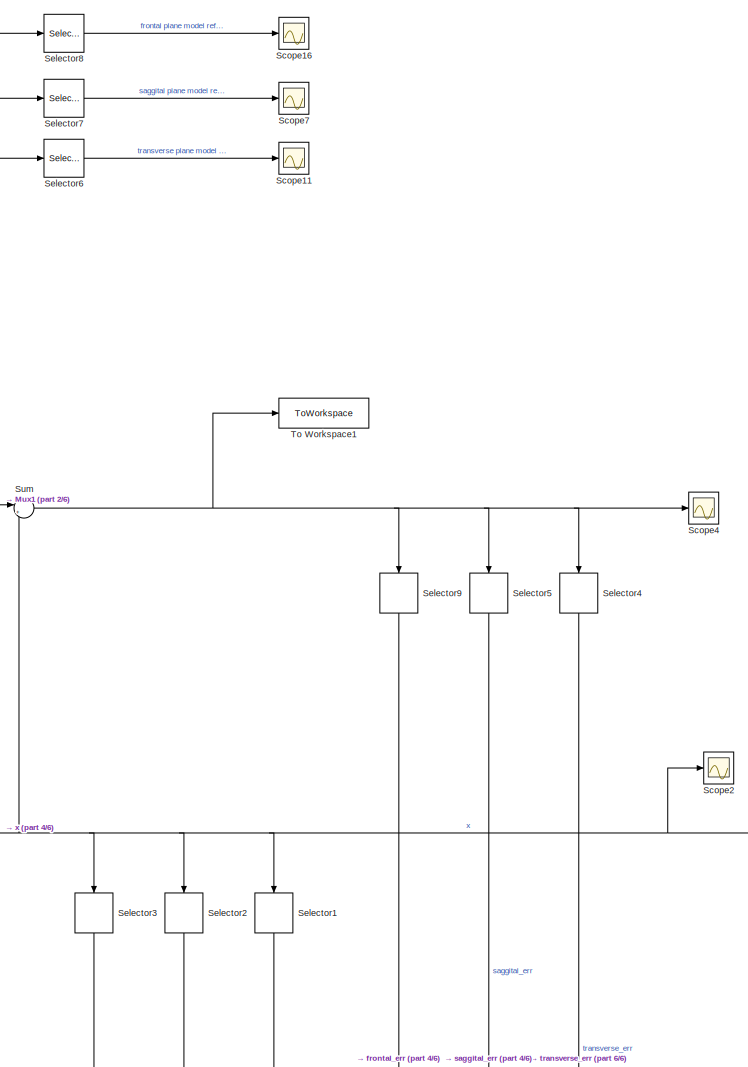
[diagram: root canvas - part 1/6, central region]
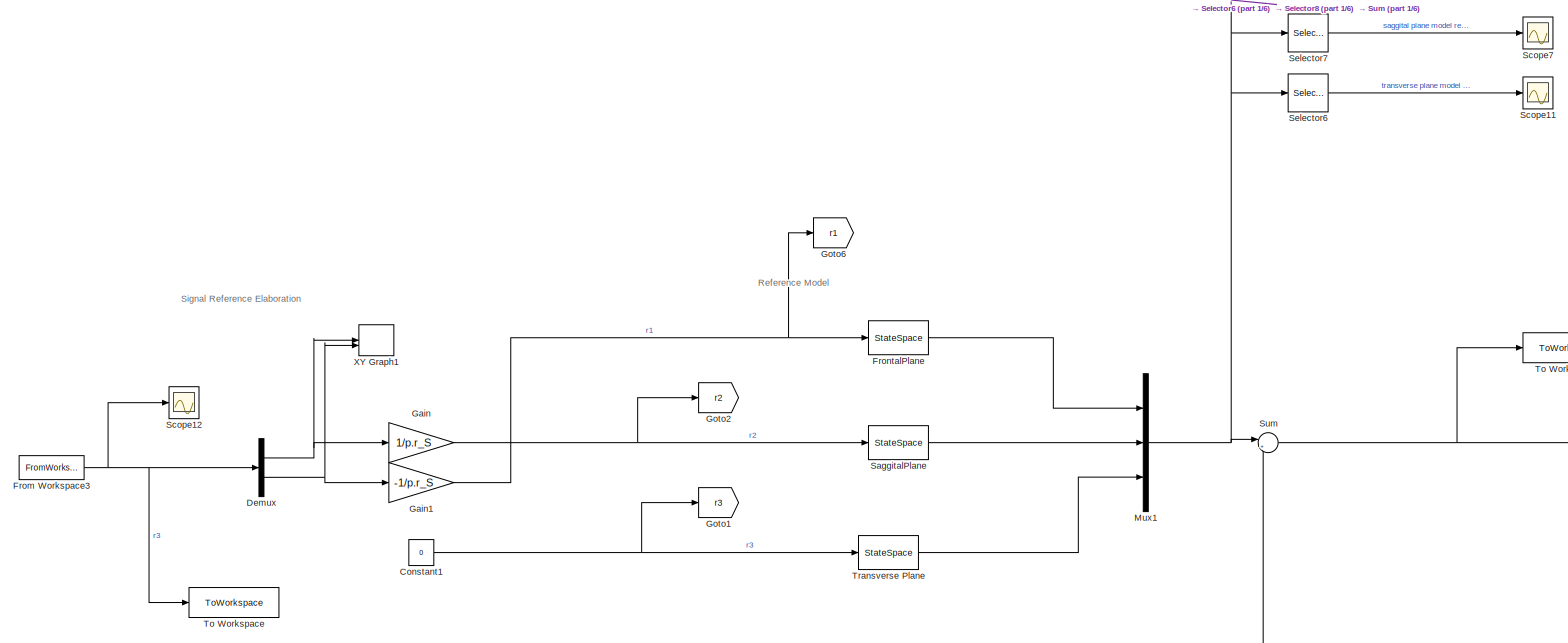
[diagram: root canvas - part 2/6, top left region]
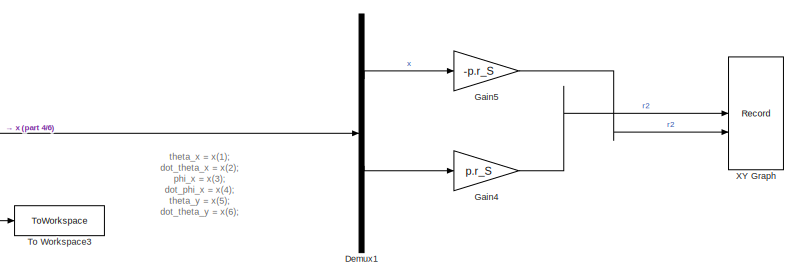
[diagram: root canvas - part 3/6, middle right region]
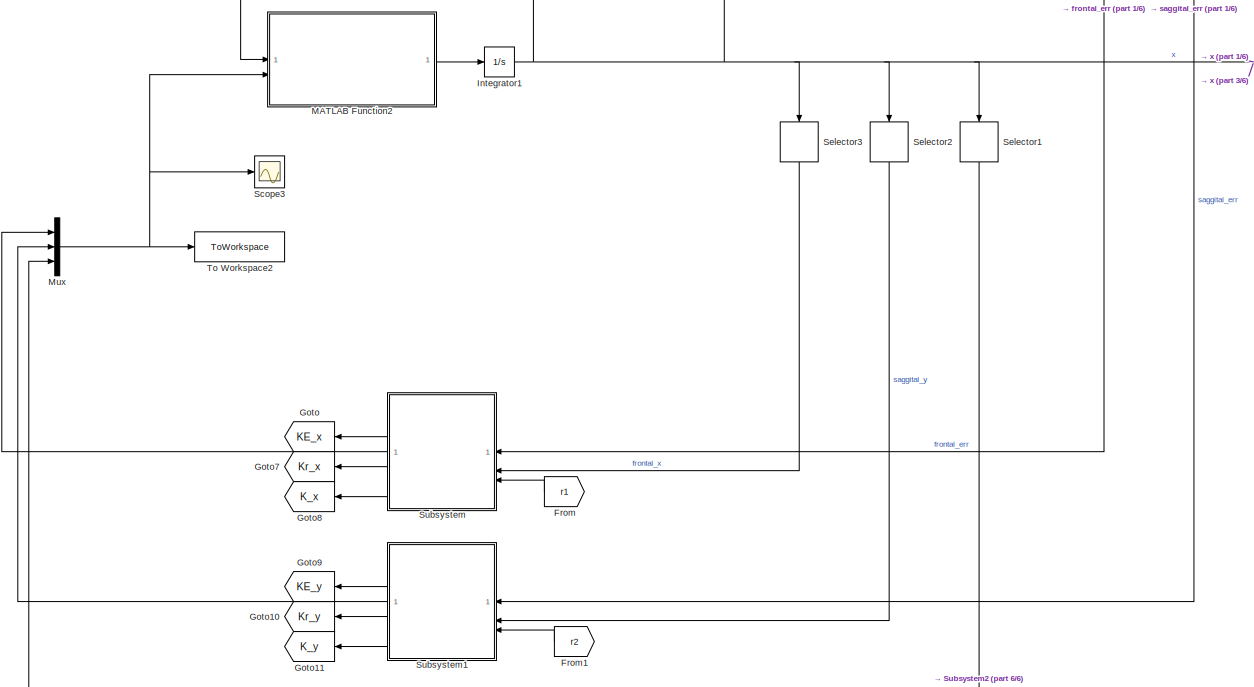
[diagram: root canvas - part 4/6, bottom center region]
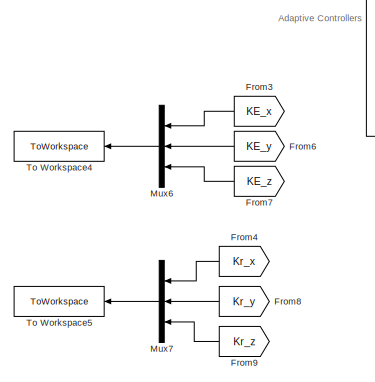
[diagram: root canvas - part 5/6, bottom left region]
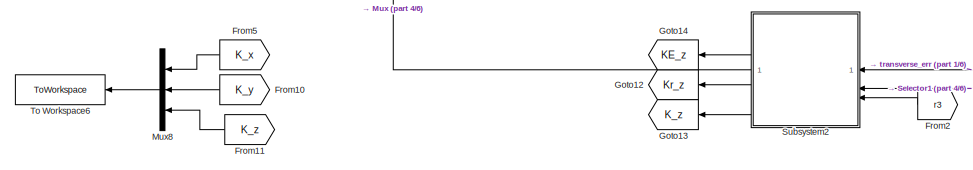
[diagram: root canvas - part 6/6, bottom left region]
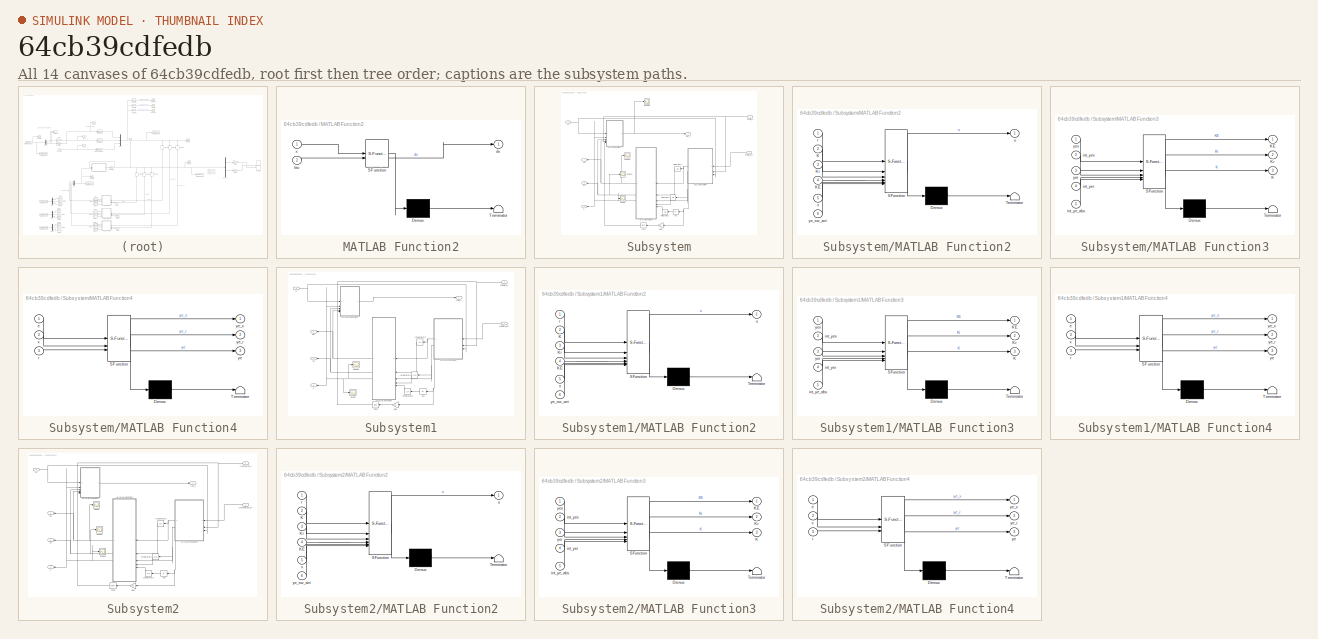
[diagram: thumbnail index - all 14 canvases of the model, root first then tree order]
MODEL slx_64cb39cdfedb
KIND model
CONFIG AbsTol = auto
CONFIG EnableMultiTasking = off
CONFIG FixedStep = 0.001
CONFIG MaxStep = auto
CONFIG MinStep = auto
CONFIG RelTol = 1e-3
CONFIG SampleTimeConstraint = Unconstrained
CONFIG SolverName = ode4
CONFIG StartTime = 0.0
CONFIG StopTime = 36
BLOCK [Constant] Constant1
  Value = 0
BLOCK [Demux] Demux
  Outputs = 2
BLOCK [Demux] Demux1
  Outputs = 10
BLOCK [From] From
  GotoTag = r1
  NameLocation = top
BLOCK [FromWorkspace] From Workspace3
  OutputAfterFinalValue = Holding final value
  SampleTime = 0.01
  VariableName = waypoints_ts
BLOCK [From] From1
  GotoTag = r2
  NameLocation = top
BLOCK [From] From10
  GotoTag = K_y
BLOCK [From] From11
  GotoTag = K_z
BLOCK [From] From2
  GotoTag = r3
  NameLocation = top
BLOCK [From] From3
  GotoTag = KE_x
BLOCK [From] From4
  GotoTag = Kr_x
BLOCK [From] From5
  GotoTag = K_x
BLOCK [From] From6
  GotoTag = KE_y
BLOCK [From] From7
  GotoTag = KE_z
BLOCK [From] From8
  GotoTag = Kr_y
BLOCK [From] From9
  GotoTag = Kr_z
BLOCK [StateSpace] FrontalPlane
  A = Am_x
  B = Bm_x
  C = Cm_x
  D = Dm_x
  InitialCondition = x0(1:4)
BLOCK [Gain] Gain
  Gain = 1/p.r_S
BLOCK [Gain] Gain1
  Gain = -1/p.r_S
BLOCK [Gain] Gain4
  Gain = p.r_S
  Multiplication = Matrix(K*u)
BLOCK [Gain] Gain5
  Gain = -p.r_S
  Multiplication = Matrix(K*u)
BLOCK [Goto] Goto
  GotoTag = KE_x
  NameLocation = top
BLOCK [Goto] Goto1
  GotoTag = r3
BLOCK [Goto] Goto10
  GotoTag = Kr_y
BLOCK [Goto] Goto11
  GotoTag = K_y
  NameLocation = top
BLOCK [Goto] Goto12
  GotoTag = Kr_z
BLOCK [Goto] Goto13
  GotoTag = K_z
  NameLocation = top
BLOCK [Goto] Goto14
  GotoTag = KE_z
  NameLocation = top
BLOCK [Goto] Goto2
  GotoTag = r2
BLOCK [Goto] Goto6
  GotoTag = r1
BLOCK [Goto] Goto7
  GotoTag = Kr_x
  NameLocation = top
BLOCK [Goto] Goto8
  GotoTag = K_x
  NameLocation = top
BLOCK [Goto] Goto9
  GotoTag = KE_y
  NameLocation = top
BLOCK [Integrator] Integrator1
  InitialCondition = x0
BLOCK [SubSystem] MATLAB Function2
  ErrorFcn = Stateflow.Translate.translate
  PermitHierarchicalResolution = ExplicitOnly
  SFBlockType = MATLAB Function
  TreatAsAtomicUnit = on
BLOCK [Demux] MATLAB Function2/ Demux 
  Outputs = 1
BLOCK [S-Function] MATLAB Function2/ SFunction 
  EnableBusSupport = off
  FunctionName = sf_sfun
  Parameters = p
  PortCounts = [2 2]
  SFcnIsStateOwnerBlock = off
  SFunctionDeploymentMode = off
  Tag = Stateflow S-Function 11
BLOCK [Terminator] MATLAB Function2/ Terminator 
BLOCK [Outport] MATLAB Function2/dx
BLOCK [Inport] MATLAB Function2/tau
  Port = 2
BLOCK [Inport] MATLAB Function2/x
BLOCK [Mux] Mux
  DisplayOption = bar
  Inputs = 3
BLOCK [Mux] Mux1
  DisplayOption = bar
  Inputs = 3
BLOCK [Mux] Mux6
  DisplayOption = bar
  Inputs = 3
  NameLocation = top
BLOCK [Mux] Mux7
  DisplayOption = bar
  Inputs = 3
  NameLocation = top
BLOCK [Mux] Mux8
  DisplayOption = bar
  Inputs = 3
  NameLocation = top
BLOCK [StateSpace] SaggitalPlane
  A = Am_y
  B = Bm_y
  C = Cm_y
  D = Dm_y
  InitialCondition = x0(5:8)
BLOCK [Scope] Scope11
  ActiveDisplayYMaximum = 1
  ActiveDisplayYMinimum = -1
  ContainerLayout = {"WindowBounds":[112,-12,1309,844],"gridDimensions":{"w":1,"h":1},"tileCount":1,"tileCoverage":1,"columnWeights":1,"rowWeights":1,"tileOccupancy":{}}
  DataLoggingVariableName = ScopeData19
  Floating = off
  GraphicalSettings = {"Style":{"BackgroundColor":[0,0,0],"AxesColor":[0,0,0],"LabelsColor":[0,0,0],"PreserveColors":false,"Visible":[true,true],"LineStyle":["-","-"],"LineWidth":[1.5,1.5],"BarWidth":[0.9,0.9],"LineColor":["auto","auto"],"LineFaceAlpha":[1,1],"LineEdgeAlpha":[1,1],"Marker":["none","none"],"FontSize":8.5,"LineTrueColor":[[0.06666666666666667,0.44313725490196076,0.7450980392156863],[0.8666666666666667,0....<+1964ch>
  MultipleDisplayCache = [{"MaxYLimMag":1,"MaxYLimReal":1,"MinYLimMag":0,"MinYLimReal":-1,"PlotAsMagnitudePhase":false,"ShowGrid":true,"ShowLegend":false,"Title":"%<SignalLabel>","YLabel":""}]
  NameLocation = right
  NumInputPorts = 1
  ScopeFrameLocation = container
  WasSavedAsWebScope = on
  WindowPosition = [112.000000,32.000000,1309.000000,844.000000,]
BLOCK [Scope] Scope12
  ActiveDisplayYMaximum = 4.9604985349891688
  ActiveDisplayYMinimum = -0.55116650388768529
  DataLoggingDecimation = 1
  DataLoggingSaveFormat = Array
  DataLoggingVariableName = ScopeData20
  Floating = off
  GraphicalSettings = {"Style":{"BackgroundColor":[0.12941176470588237,0.12941176470588237,0.12941176470588237],"AxesColor":[0.07058823529411765,0.07058823529411765,0.07058823529411765],"LabelsColor":[0.8509803921568627,0.8509803921568627,0.8509803921568627],"PreserveColors":false,"Visible":[true,true],"LineStyle":["-","-"],"LineWidth":[1.5,1.5],"BarWidth":[0.9,0.9],"LineColor":["auto","auto"],"LineFaceAlpha":[1,1],"Li...<+2099ch>
  MultipleDisplayCache = [{"MaxYLimMag":4.9604985349891688,"MaxYLimReal":4.9604985349891688,"MinYLimMag":0,"MinYLimReal":-0.55116650388768529,"PlotAsMagnitudePhase":false,"ShowGrid":true,"ShowLegend":false,"Title":"%<SignalLabel>","YLabel":""}]
  NumInputPorts = 1
  ScopeFrameLocation = window
  WasSavedAsWebScope = on
  WindowPosition = [2.000000,50.000000,766.000000,785.000000,]
BLOCK [Scope] Scope16
  ActiveDisplayYMaximum = 5.3735398831765027
  ActiveDisplayYMinimum = -1.561360729010373
  DataLoggingVariableName = ScopeData25
  Floating = off
  GraphicalSettings = {"Style":{"BackgroundColor":[0.12941176470588237,0.12941176470588237,0.12941176470588237],"AxesColor":[0.07058823529411765,0.07058823529411765,0.07058823529411765],"LabelsColor":[0.8509803921568627,0.8509803921568627,0.8509803921568627],"PreserveColors":false,"Visible":[true,false,false,false],"LineStyle":["-","-","-","-"],"LineWidth":[1.5,1.5,1.5,1.5],"BarWidth":[0.9,0.9,0.9,0.9],"LineColor":["au...<+2525ch>
  MultipleDisplayCache = [{"MaxYLimMag":5.3735398831765027,"MaxYLimReal":5.3735398831765027,"MinYLimMag":0,"MinYLimReal":-1.561360729010373,"PlotAsMagnitudePhase":false,"ShowGrid":true,"ShowLegend":true,"Title":"%<SignalLabel>","YLabel":""}]
  NameLocation = right
  NumInputPorts = 1
  ScopeFrameLocation = window
  ShowLegend = on
  WasSavedAsWebScope = on
  WindowPosition = [1.000000,49.000000,1536.000000,793.000000,]
BLOCK [Scope] Scope2
  ActiveDisplayYMaximum = 12.484215788226109
  ActiveDisplayYMinimum = -2.4855756069167088
  ContainerLayout = {"WindowBounds":[71,0,1309,822]}
  DataLoggingVariableName = ScopeData1
  Floating = off
  GraphicalSettings = {"Style":{"BackgroundColor":[0.12941176470588237,0.12941176470588237,0.12941176470588237],"AxesColor":[0.07058823529411765,0.07058823529411765,0.07058823529411765],"LabelsColor":[0.8509803921568627,0.8509803921568627,0.8509803921568627],"PreserveColors":false,"Visible":[true,false,false,false,false,false,false,false,true,false],"LineStyle":["-","-","-","-","-","-","-","-","-","-"],"LineWidth":[1.5...<+2926ch>
  MultipleDisplayCache = [{"MaxYLimMag":12.484215788226109,"MaxYLimReal":12.484215788226109,"MinYLimMag":0,"MinYLimReal":-2.4855756069167088,"PlotAsMagnitudePhase":false,"ShowGrid":true,"ShowLegend":true,"Title":"%<SignalLabel>","YLabel":""}]
  NumInputPorts = 1
  ScopeFrameLocation = container
  ShowLegend = on
  WasSavedAsWebScope = on
  WindowPosition = [79.000000,50.000000,1294.000000,785.000000,]
BLOCK [Scope] Scope3
  ActiveDisplayYMaximum = 581.33162472829531
  ActiveDisplayYMinimum = -105.04370048469272
  ContainerLayout = {"WindowBounds":[71,0,1309,822]}
  DataLoggingVariableName = ScopeData9
  Floating = off
  GraphicalSettings = {"Style":{"BackgroundColor":[0.12941176470588237,0.12941176470588237,0.12941176470588237],"AxesColor":[0.07058823529411765,0.07058823529411765,0.07058823529411765],"LabelsColor":[0.8509803921568627,0.8509803921568627,0.8509803921568627],"PreserveColors":false,"Visible":[true,true,true],"LineStyle":["-","-","-"],"LineWidth":[1.5,1.5,1.5],"BarWidth":[0.9,0.9,0.9],"LineColor":["auto","auto","auto"],"...<+2252ch>
  MultipleDisplayCache = [{"MaxYLimMag":581.33162472829531,"MaxYLimReal":581.33162472829531,"MinYLimMag":0,"MinYLimReal":-105.04370048469272,"PlotAsMagnitudePhase":false,"ShowGrid":true,"ShowLegend":true,"Title":"%<SignalLabel>","YLabel":""}]
  NumInputPorts = 1
  ScopeFrameLocation = container
  ShowLegend = on
  Visible = on
  WasSavedAsWebScope = on
  WindowPosition = [71.000000,42.000000,1309.000000,822.000000,]
BLOCK [Scope] Scope4
  ActiveDisplayYMaximum = 7.9410058565728949
  ActiveDisplayYMinimum = -19.49948502397293
  ContainerLayout = {"WindowBounds":[71,0,1309,822]}
  DataLoggingVariableName = ScopeData2
  Floating = off
  GraphicalSettings = {"Style":{"BackgroundColor":[0.12941176470588237,0.12941176470588237,0.12941176470588237],"AxesColor":[0.07058823529411765,0.07058823529411765,0.07058823529411765],"LabelsColor":[0.8509803921568627,0.8509803921568627,0.8509803921568627],"PreserveColors":false,"Visible":[false,false,false,false,false,false,false,false,false,false],"LineStyle":["-","-","-","-","-","-","-","-","-","-"],"LineWidth":[1...<+2962ch>
  MultipleDisplayCache = [{"MaxYLimMag":19.49948502397293,"MaxYLimReal":7.9410058565728949,"MinYLimMag":0,"MinYLimReal":-19.49948502397293,"PlotAsMagnitudePhase":false,"ShowGrid":true,"ShowLegend":true,"Title":"%<SignalLabel>","YLabel":""}]
  NumInputPorts = 1
  ScopeFrameLocation = container
  ShowLegend = on
  WasSavedAsWebScope = on
  WindowPosition = [79.000000,50.000000,1294.000000,785.000000,]
BLOCK [Scope] Scope7
  ActiveDisplayYMaximum = 39.484259056634677
  ActiveDisplayYMinimum = -5.03194060462366
  DataLoggingVariableName = ScopeData13
  Floating = off
  GraphicalSettings = {"Style":{"BackgroundColor":[0.12941176470588237,0.12941176470588237,0.12941176470588237],"AxesColor":[0.07058823529411765,0.07058823529411765,0.07058823529411765],"LabelsColor":[0.8509803921568627,0.8509803921568627,0.8509803921568627],"PreserveColors":false,"Visible":[true,true,true,true],"LineStyle":["-","-","-","-"],"LineWidth":[1.5,1.5,1.5,1.5],"BarWidth":[0.9,0.9,0.9,0.9],"LineColor":["auto"...<+2536ch>
  MultipleDisplayCache = [{"MaxYLimMag":39.484259056634677,"MaxYLimReal":39.484259056634677,"MinYLimMag":0,"MinYLimReal":-5.03194060462366,"PlotAsMagnitudePhase":false,"ShowGrid":true,"ShowLegend":true,"Title":"%<SignalLabel>","YLabel":""}]
  NameLocation = right
  NumInputPorts = 1
  ScopeFrameLocation = window
  ShowLegend = on
  WasSavedAsWebScope = on
  WindowPosition = [8.000000,44.000000,1520.000000,777.000000,]
BLOCK [Selector] Selector1
  IndexOptions = Index vector (dialog)
  Indices = [9 10]
  InputPortWidth = 10
  NameLocation = left
  OutputSizes = 1
BLOCK [Selector] Selector2
  IndexOptions = Index vector (dialog)
  Indices = [5 6 7 8]
  InputPortWidth = 10
  NameLocation = left
  OutputSizes = 1
BLOCK [Selector] Selector3
  IndexOptions = Index vector (dialog)
  Indices = [1 2 3 4]
  InputPortWidth = 10
  NameLocation = left
  OutputSizes = 1
BLOCK [Selector] Selector4
  IndexOptions = Index vector (dialog)
  Indices = [9 10]
  InputPortWidth = 10
  NameLocation = left
  OutputSizes = 1
BLOCK [Selector] Selector5
  IndexOptions = Index vector (dialog)
  Indices = [5 6 7 8]
  InputPortWidth = 10
  NameLocation = left
  OutputSizes = 1
BLOCK [Selector] Selector6
  IndexOptions = Index vector (dialog)
  Indices = [9 10]
  InputPortWidth = 10
  OutputSizes = 1
BLOCK [Selector] Selector7
  IndexOptions = Index vector (dialog)
  Indices = [5 6 7 8]
  InputPortWidth = 10
  OutputSizes = 1
BLOCK [Selector] Selector8
  IndexOptions = Index vector (dialog)
  Indices = [1 2 3 4]
  InputPortWidth = 10
  OutputSizes = 1
BLOCK [Selector] Selector9
  IndexOptions = Index vector (dialog)
  Indices = [1 2 3 4]
  InputPortWidth = 10
  NameLocation = left
  OutputSizes = 1
BLOCK [SubSystem] Subsystem
  NameLocation = top
BLOCK [Abs] Subsystem/Abs
  NameLocation = top
  SaturateOnIntegerOverflow = off
BLOCK [Gain] Subsystem/Gain
  Gain = 20
  NameLocation = top
BLOCK [Integrator] Subsystem/Integrator2
  NameLocation = top
BLOCK [Integrator] Subsystem/Integrator3
  NameLocation = top
BLOCK [Integrator] Subsystem/Integrator4
  NameLocation = top
BLOCK [Outport] Subsystem/K
  NameLocation = top
  Port = 4
BLOCK [Outport] Subsystem/KE
  NameLocation = top
  Port = 2
BLOCK [Outport] Subsystem/Kr
  NameLocation = top
  Port = 3
BLOCK [SubSystem] Subsystem/MATLAB Function2
  ErrorFcn = Stateflow.Translate.translate
  PermitHierarchicalResolution = ExplicitOnly
  SFBlockType = MATLAB Function
  TreatAsAtomicUnit = on
BLOCK [Demux] Subsystem/MATLAB Function2/ Demux 
  Outputs = 1
BLOCK [S-Function] Subsystem/MATLAB Function2/ SFunction 
  EnableBusSupport = off
  FunctionName = sf_sfun
  PortCounts = [6 2]
  SFcnIsStateOwnerBlock = off
  SFunctionDeploymentMode = off
  Tag = Stateflow S-Function 3
BLOCK [Terminator] Subsystem/MATLAB Function2/ Terminator 
BLOCK [Inport] Subsystem/MATLAB Function2/K
  Port = 2
BLOCK [Inport] Subsystem/MATLAB Function2/KE
  Port = 4
BLOCK [Inport] Subsystem/MATLAB Function2/Kr
  Port = 3
BLOCK [Inport] Subsystem/MATLAB Function2/r
BLOCK [Outport] Subsystem/MATLAB Function2/u
BLOCK [Inport] Subsystem/MATLAB Function2/x
  Port = 5
BLOCK [Inport] Subsystem/MATLAB Function2/ye_sw_act
  Port = 6
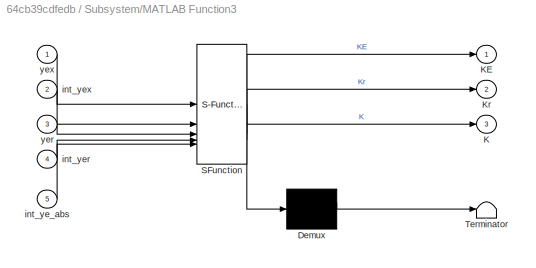
BLOCK [SubSystem] Subsystem/MATLAB Function3
  ErrorFcn = Stateflow.Translate.translate
  NameLocation = top
  PermitHierarchicalResolution = ExplicitOnly
  SFBlockType = MATLAB Function
  TreatAsAtomicUnit = on
BLOCK [Demux] Subsystem/MATLAB Function3/ Demux 
  Outputs = 1
BLOCK [S-Function] Subsystem/MATLAB Function3/ SFunction 
  EnableBusSupport = off
  FunctionName = sf_sfun
  Parameters = alpha,beta,gamma
  PortCounts = [5 4]
  SFcnIsStateOwnerBlock = off
  SFunctionDeploymentMode = off
  Tag = Stateflow S-Function 4
BLOCK [Terminator] Subsystem/MATLAB Function3/ Terminator 
BLOCK [Outport] Subsystem/MATLAB Function3/K
  Port = 3
BLOCK [Outport] Subsystem/MATLAB Function3/KE
BLOCK [Outport] Subsystem/MATLAB Function3/Kr
  Port = 2
BLOCK [Inport] Subsystem/MATLAB Function3/int_ye_abs
  Port = 5
BLOCK [Inport] Subsystem/MATLAB Function3/int_yer
  Port = 4
BLOCK [Inport] Subsystem/MATLAB Function3/int_yex
  Port = 2
BLOCK [Inport] Subsystem/MATLAB Function3/yer
  Port = 3
BLOCK [Inport] Subsystem/MATLAB Function3/yex
BLOCK [SubSystem] Subsystem/MATLAB Function4
  ErrorFcn = Stateflow.Translate.translate
  NameLocation = top
  PermitHierarchicalResolution = ExplicitOnly
  SFBlockType = MATLAB Function
  TreatAsAtomicUnit = on
BLOCK [Demux] Subsystem/MATLAB Function4/ Demux 
  Outputs = 1
BLOCK [S-Function] Subsystem/MATLAB Function4/ SFunction 
  EnableBusSupport = off
  FunctionName = sf_sfun
  Parameters = B_roll,Px
  PortCounts = [3 4]
  SFcnIsStateOwnerBlock = off
  SFunctionDeploymentMode = off
  Tag = Stateflow S-Function 2
BLOCK [Terminator] Subsystem/MATLAB Function4/ Terminator 
BLOCK [Inport] Subsystem/MATLAB Function4/e
BLOCK [Inport] Subsystem/MATLAB Function4/r
  Port = 3
BLOCK [Inport] Subsystem/MATLAB Function4/x
  Port = 2
BLOCK [Outport] Subsystem/MATLAB Function4/ye
  Port = 3
BLOCK [Outport] Subsystem/MATLAB Function4/ye_r
  Port = 2
BLOCK [Outport] Subsystem/MATLAB Function4/ye_x
BLOCK [Scope] Subsystem/Scope
  ActiveDisplayYMaximum = 11.360372956626584
  ActiveDisplayYMinimum = -14.804673903534876
  DataLoggingVariableName = ScopeData6
  Floating = off
  GraphicalSettings = {"AxesScalingProperties":{"AlignXAxis":"Center","AlignYAxis":"Center","AutoScaleXAxisLimits":false,"AxesScaling":"Manual","AxesScalingNumUpdates":10,"ExpandOnly":true,"ScaleAxesLimitsAtStop":false,"XAxisDataRange":100,"YAxisDataRange":80},"DisplayProperties":{"ColorOrder":["auto","auto","auto","auto","auto","auto","auto","auto","auto","auto","auto","auto","auto","auto","auto","auto","auto","auto",...<+2467ch>
  MultipleDisplayCache = [{"MaxYLimMag":14.804673903534876,"MaxYLimReal":11.360372956626584,"MinYLimMag":0,"MinYLimReal":-14.804673903534876,"PlotAsMagnitudePhase":false,"ShowGrid":true,"ShowLegend":true,"Title":"%<SignalLabel>","YLabel":""}]
  NumInputPorts = 1
  ScopeFrameLocation = window
  ShowLegend = on
  WasSavedAsWebScope = on
  WindowPosition = [1.000000,49.000000,1536.000000,793.000000,]
BLOCK [Scope] Subsystem/Scope1
  ActiveDisplayYMaximum = 5.1005284890822695
  ActiveDisplayYMinimum = -5.521667452338054
  DataLoggingVariableName = ScopeData7
  Floating = off
  GraphicalSettings = {"Style":{"BackgroundColor":[0.12941176470588237,0.12941176470588237,0.12941176470588237],"AxesColor":[0.07058823529411765,0.07058823529411765,0.07058823529411765],"LabelsColor":[0.8509803921568627,0.8509803921568627,0.8509803921568627],"PreserveColors":false,"Visible":[true],"LineStyle":["-"],"LineWidth":[1.5],"BarWidth":[0.9],"LineColor":["auto"],"LineFaceAlpha":[1],"LineEdgeAlpha":[1],"Marker":...<+2021ch>
  MultipleDisplayCache = [{"MaxYLimMag":5.521667452338054,"MaxYLimReal":5.1005284890822695,"MinYLimMag":0,"MinYLimReal":-5.521667452338054,"PlotAsMagnitudePhase":false,"ShowGrid":true,"ShowLegend":false,"Title":"%<SignalLabel>","YLabel":""}]
  NumInputPorts = 1
  ScopeFrameLocation = window
  WasSavedAsWebScope = on
  WindowPosition = [305.000000,183.000000,560.000000,420.000000,]
BLOCK [Scope] Subsystem/Scope2
  ActiveDisplayYMaximum = 1
  ActiveDisplayYMinimum = -1
  DataLoggingVariableName = ScopeData8
  Floating = off
  GraphicalSettings = {"Style":{"BackgroundColor":[0.12941176470588237,0.12941176470588237,0.12941176470588237],"AxesColor":[0.07058823529411765,0.07058823529411765,0.07058823529411765],"LabelsColor":[0.8509803921568627,0.8509803921568627,0.8509803921568627],"PreserveColors":false,"Visible":[true],"LineStyle":["-"],"LineWidth":[1.5],"BarWidth":[0.9],"LineColor":["auto"],"LineFaceAlpha":[1],"LineEdgeAlpha":[1],"Marker":...<+2040ch>
  MultipleDisplayCache = [{"MaxYLimMag":1,"MaxYLimReal":1,"MinYLimMag":0,"MinYLimReal":-1,"PlotAsMagnitudePhase":false,"ShowGrid":true,"ShowLegend":false,"Title":"%<SignalLabel>","YLabel":""}]
  NumInputPorts = 1
  ScopeFrameLocation = window
  WasSavedAsWebScope = on
  WindowPosition = [488.000000,222.000000,560.000000,420.000000,]
BLOCK [Scope] Subsystem/Scope3
  ActiveDisplayYMaximum = 5.2222356802516376
  ActiveDisplayYMinimum = -0.58024840891684848
  DataLoggingVariableName = ScopeData12
  Floating = off
  GraphicalSettings = {"Style":{"BackgroundColor":[0.12941176470588237,0.12941176470588237,0.12941176470588237],"AxesColor":[0.07058823529411765,0.07058823529411765,0.07058823529411765],"LabelsColor":[0.8509803921568627,0.8509803921568627,0.8509803921568627],"PreserveColors":false,"Visible":[true],"LineStyle":["-"],"LineWidth":[1.5],"BarWidth":[0.9],"LineColor":["auto"],"LineFaceAlpha":[1],"LineEdgeAlpha":[1],"Marker":...<+2021ch>
  MultipleDisplayCache = [{"MaxYLimMag":5.2222356802516376,"MaxYLimReal":5.2222356802516376,"MinYLimMag":0,"MinYLimReal":-0.58024840891684848,"PlotAsMagnitudePhase":false,"ShowGrid":true,"ShowLegend":false,"Title":"%<SignalLabel>","YLabel":""}]
  NumInputPorts = 1
  ScopeFrameLocation = window
  WasSavedAsWebScope = on
  WindowPosition = [385.000000,40.000000,766.000000,785.000000,]
BLOCK [Trigonometry] Subsystem/Tanh
  NameLocation = top
  Operator = tanh
BLOCK [Inport] Subsystem/frontal_err
  NameLocation = top
BLOCK [Inport] Subsystem/frontal_x
  NameLocation = top
  Port = 2
BLOCK [Inport] Subsystem/r1
  Port = 3
BLOCK [Outport] Subsystem/tau_x
BLOCK [SubSystem] Subsystem1
  NameLocation = top
BLOCK [Abs] Subsystem1/Abs
  NameLocation = top
  SaturateOnIntegerOverflow = off
BLOCK [Gain] Subsystem1/Gain
  Gain = 20
  NameLocation = top
BLOCK [Integrator] Subsystem1/Integrator2
  NameLocation = top
BLOCK [Integrator] Subsystem1/Integrator3
  NameLocation = top
BLOCK [Integrator] Subsystem1/Integrator4
  NameLocation = top
BLOCK [Outport] Subsystem1/K
  NameLocation = top
  Port = 4
BLOCK [Outport] Subsystem1/KE
  NameLocation = top
  Port = 2
BLOCK [Outport] Subsystem1/Kr
  NameLocation = top
  Port = 3
BLOCK [SubSystem] Subsystem1/MATLAB Function2
  ErrorFcn = Stateflow.Translate.translate
  PermitHierarchicalResolution = ExplicitOnly
  SFBlockType = MATLAB Function
  TreatAsAtomicUnit = on
BLOCK [Demux] Subsystem1/MATLAB Function2/ Demux 
  Outputs = 1
BLOCK [S-Function] Subsystem1/MATLAB Function2/ SFunction 
  EnableBusSupport = off
  FunctionName = sf_sfun
  PortCounts = [6 2]
  SFcnIsStateOwnerBlock = off
  SFunctionDeploymentMode = off
  Tag = Stateflow S-Function 5
BLOCK [Terminator] Subsystem1/MATLAB Function2/ Terminator 
BLOCK [Inport] Subsystem1/MATLAB Function2/K
  Port = 2
BLOCK [Inport] Subsystem1/MATLAB Function2/KE
  Port = 4
BLOCK [Inport] Subsystem1/MATLAB Function2/Kr
  Port = 3
BLOCK [Inport] Subsystem1/MATLAB Function2/r
BLOCK [Outport] Subsystem1/MATLAB Function2/u
BLOCK [Inport] Subsystem1/MATLAB Function2/x
  Port = 5
BLOCK [Inport] Subsystem1/MATLAB Function2/ye_sw_act
  Port = 6
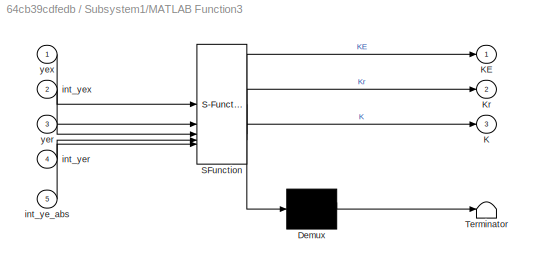
BLOCK [SubSystem] Subsystem1/MATLAB Function3
  ErrorFcn = Stateflow.Translate.translate
  NameLocation = top
  PermitHierarchicalResolution = ExplicitOnly
  SFBlockType = MATLAB Function
  TreatAsAtomicUnit = on
BLOCK [Demux] Subsystem1/MATLAB Function3/ Demux 
  Outputs = 1
BLOCK [S-Function] Subsystem1/MATLAB Function3/ SFunction 
  EnableBusSupport = off
  FunctionName = sf_sfun
  Parameters = alpha,beta,gamma
  PortCounts = [5 4]
  SFcnIsStateOwnerBlock = off
  SFunctionDeploymentMode = off
  Tag = Stateflow S-Function 6
BLOCK [Terminator] Subsystem1/MATLAB Function3/ Terminator 
BLOCK [Outport] Subsystem1/MATLAB Function3/K
  Port = 3
BLOCK [Outport] Subsystem1/MATLAB Function3/KE
BLOCK [Outport] Subsystem1/MATLAB Function3/Kr
  Port = 2
BLOCK [Inport] Subsystem1/MATLAB Function3/int_ye_abs
  Port = 5
BLOCK [Inport] Subsystem1/MATLAB Function3/int_yer
  Port = 4
BLOCK [Inport] Subsystem1/MATLAB Function3/int_yex
  Port = 2
BLOCK [Inport] Subsystem1/MATLAB Function3/yer
  Port = 3
BLOCK [Inport] Subsystem1/MATLAB Function3/yex
BLOCK [SubSystem] Subsystem1/MATLAB Function4
  ErrorFcn = Stateflow.Translate.translate
  NameLocation = top
  PermitHierarchicalResolution = ExplicitOnly
  SFBlockType = MATLAB Function
  TreatAsAtomicUnit = on
BLOCK [Demux] Subsystem1/MATLAB Function4/ Demux 
  Outputs = 1
BLOCK [S-Function] Subsystem1/MATLAB Function4/ SFunction 
  EnableBusSupport = off
  FunctionName = sf_sfun
  Parameters = B_pitch,Py
  PortCounts = [3 4]
  SFcnIsStateOwnerBlock = off
  SFunctionDeploymentMode = off
  Tag = Stateflow S-Function 7
BLOCK [Terminator] Subsystem1/MATLAB Function4/ Terminator 
BLOCK [Inport] Subsystem1/MATLAB Function4/e
BLOCK [Inport] Subsystem1/MATLAB Function4/r
  Port = 3
BLOCK [Inport] Subsystem1/MATLAB Function4/x
  Port = 2
BLOCK [Outport] Subsystem1/MATLAB Function4/ye
  Port = 3
BLOCK [Outport] Subsystem1/MATLAB Function4/ye_r
  Port = 2
BLOCK [Outport] Subsystem1/MATLAB Function4/ye_x
BLOCK [Scope] Subsystem1/Scope
  ActiveDisplayYMaximum = 11.140268912066722
  ActiveDisplayYMinimum = -11.265590181638307
  DataLoggingVariableName = ScopeData15
  Floating = off
  GraphicalSettings = {"AxesScalingProperties":{"AlignXAxis":"Center","AlignYAxis":"Center","AutoScaleXAxisLimits":false,"AxesScaling":"Manual","AxesScalingNumUpdates":10,"ExpandOnly":true,"ScaleAxesLimitsAtStop":false,"XAxisDataRange":100,"YAxisDataRange":80},"DisplayProperties":{"ColorOrder":["auto","auto","auto","auto","auto","auto","auto","auto","auto","auto","auto","auto","auto","auto","auto","auto","auto","auto",...<+2469ch>
  MultipleDisplayCache = [{"MaxYLimMag":11.265590181638307,"MaxYLimReal":11.140268912066722,"MinYLimMag":0,"MinYLimReal":-11.265590181638307,"PlotAsMagnitudePhase":false,"ShowGrid":true,"ShowLegend":false,"Title":"%<SignalLabel>","YLabel":""}]
  NumInputPorts = 1
  ScopeFrameLocation = window
  Visible = on
  WasSavedAsWebScope = on
  WindowPosition = [0.000000,36.000000,1536.000000,793.000000,]
BLOCK [Scope] Subsystem1/Scope1
  ActiveDisplayYMaximum = 0.19750652048632228
  ActiveDisplayYMinimum = -1.1237910832802247
  DataLoggingVariableName = ScopeData16
  Floating = off
  GraphicalSettings = {"Style":{"BackgroundColor":[0.12941176470588237,0.12941176470588237,0.12941176470588237],"AxesColor":[0.07058823529411765,0.07058823529411765,0.07058823529411765],"LabelsColor":[0.8509803921568627,0.8509803921568627,0.8509803921568627],"PreserveColors":false,"Visible":[true],"LineStyle":["-"],"LineWidth":[1.5],"BarWidth":[0.9],"LineColor":["auto"],"LineFaceAlpha":[1],"LineEdgeAlpha":[1],"Marker":...<+2018ch>
  MultipleDisplayCache = [{"MaxYLimMag":1.1237910832802247,"MaxYLimReal":0.19750652048632228,"MinYLimMag":0,"MinYLimReal":-1.1237910832802247,"PlotAsMagnitudePhase":false,"ShowGrid":true,"ShowLegend":false,"Title":"%<SignalLabel>","YLabel":""}]
  NumInputPorts = 1
  ScopeFrameLocation = window
  WasSavedAsWebScope = on
  WindowPosition = [488.000000,222.000000,560.000000,420.000000,]
BLOCK [Trigonometry] Subsystem1/Tanh
  NameLocation = top
  Operator = tanh
BLOCK [Inport] Subsystem1/r2
  Port = 3
BLOCK [Inport] Subsystem1/saggital_err
  NameLocation = top
BLOCK [Inport] Subsystem1/saggital_y
  NameLocation = top
  Port = 2
BLOCK [Outport] Subsystem1/tau_y
BLOCK [SubSystem] Subsystem2
  NameLocation = top
BLOCK [Abs] Subsystem2/Abs
  NameLocation = top
  SaturateOnIntegerOverflow = off
BLOCK [Gain] Subsystem2/Gain
  Gain = 20
  NameLocation = top
BLOCK [Integrator] Subsystem2/Integrator2
  NameLocation = top
BLOCK [Integrator] Subsystem2/Integrator3
  NameLocation = top
BLOCK [Integrator] Subsystem2/Integrator4
  NameLocation = top
BLOCK [Outport] Subsystem2/K
  NameLocation = top
  Port = 4
BLOCK [Outport] Subsystem2/KE
  NameLocation = top
  Port = 2
BLOCK [Outport] Subsystem2/Kr
  NameLocation = top
  Port = 3
BLOCK [SubSystem] Subsystem2/MATLAB Function2
  ErrorFcn = Stateflow.Translate.translate
  PermitHierarchicalResolution = ExplicitOnly
  SFBlockType = MATLAB Function
  TreatAsAtomicUnit = on
BLOCK [Demux] Subsystem2/MATLAB Function2/ Demux 
  Outputs = 1
BLOCK [S-Function] Subsystem2/MATLAB Function2/ SFunction 
  EnableBusSupport = off
  FunctionName = sf_sfun
  PortCounts = [6 2]
  SFcnIsStateOwnerBlock = off
  SFunctionDeploymentMode = off
  Tag = Stateflow S-Function 8
BLOCK [Terminator] Subsystem2/MATLAB Function2/ Terminator 
BLOCK [Inport] Subsystem2/MATLAB Function2/K
  Port = 2
BLOCK [Inport] Subsystem2/MATLAB Function2/KE
  Port = 4
BLOCK [Inport] Subsystem2/MATLAB Function2/Kr
  Port = 3
BLOCK [Inport] Subsystem2/MATLAB Function2/r
BLOCK [Outport] Subsystem2/MATLAB Function2/u
BLOCK [Inport] Subsystem2/MATLAB Function2/x
  Port = 5
BLOCK [Inport] Subsystem2/MATLAB Function2/ye_sw_act
  Port = 6
BLOCK [SubSystem] Subsystem2/MATLAB Function3
  ErrorFcn = Stateflow.Translate.translate
  NameLocation = top
  PermitHierarchicalResolution = ExplicitOnly
  SFBlockType = MATLAB Function
  TreatAsAtomicUnit = on
BLOCK [Demux] Subsystem2/MATLAB Function3/ Demux 
  Outputs = 1
BLOCK [S-Function] Subsystem2/MATLAB Function3/ SFunction 
  EnableBusSupport = off
  FunctionName = sf_sfun
  Parameters = alpha,beta,gamma
  PortCounts = [5 4]
  SFcnIsStateOwnerBlock = off
  SFunctionDeploymentMode = off
  Tag = Stateflow S-Function 9
BLOCK [Terminator] Subsystem2/MATLAB Function3/ Terminator 
BLOCK [Outport] Subsystem2/MATLAB Function3/K
  Port = 3
BLOCK [Outport] Subsystem2/MATLAB Function3/KE
BLOCK [Outport] Subsystem2/MATLAB Function3/Kr
  Port = 2
BLOCK [Inport] Subsystem2/MATLAB Function3/int_ye_abs
  Port = 5
BLOCK [Inport] Subsystem2/MATLAB Function3/int_yer
  Port = 4
BLOCK [Inport] Subsystem2/MATLAB Function3/int_yex
  Port = 2
BLOCK [Inport] Subsystem2/MATLAB Function3/yer
  Port = 3
BLOCK [Inport] Subsystem2/MATLAB Function3/yex
BLOCK [SubSystem] Subsystem2/MATLAB Function4
  ErrorFcn = Stateflow.Translate.translate
  NameLocation = top
  PermitHierarchicalResolution = ExplicitOnly
  SFBlockType = MATLAB Function
  TreatAsAtomicUnit = on
BLOCK [Demux] Subsystem2/MATLAB Function4/ Demux 
  Outputs = 1
BLOCK [S-Function] Subsystem2/MATLAB Function4/ SFunction 
  EnableBusSupport = off
  FunctionName = sf_sfun
  Parameters = B_spin,Pz
  PortCounts = [3 4]
  SFcnIsStateOwnerBlock = off
  SFunctionDeploymentMode = off
  Tag = Stateflow S-Function 10
BLOCK [Terminator] Subsystem2/MATLAB Function4/ Terminator 
BLOCK [Inport] Subsystem2/MATLAB Function4/e
BLOCK [Inport] Subsystem2/MATLAB Function4/r
  Port = 3
BLOCK [Inport] Subsystem2/MATLAB Function4/x
  Port = 2
BLOCK [Outport] Subsystem2/MATLAB Function4/ye
  Port = 3
BLOCK [Outport] Subsystem2/MATLAB Function4/ye_r
  Port = 2
BLOCK [Outport] Subsystem2/MATLAB Function4/ye_x
BLOCK [Scope] Subsystem2/Scope
  ActiveDisplayYMaximum = 1
  ActiveDisplayYMinimum = -1
  DataLoggingVariableName = ScopeData1
  Floating = off
  GraphicalSettings = {"Style":{"BackgroundColor":[0.12941176470588237,0.12941176470588237,0.12941176470588237],"AxesColor":[0.07058823529411765,0.07058823529411765,0.07058823529411765],"LabelsColor":[0.8509803921568627,0.8509803921568627,0.8509803921568627],"PreserveColors":false,"Visible":[true],"LineStyle":["-"],"LineWidth":[1.5],"BarWidth":[0.9],"LineColor":["auto"],"LineFaceAlpha":[1],"LineEdgeAlpha":[1],"Marker":...<+1922ch>
  MultipleDisplayCache = [{"MaxYLimMag":1,"MaxYLimReal":1,"MinYLimMag":0,"MinYLimReal":-1,"PlotAsMagnitudePhase":false,"ShowGrid":true,"ShowLegend":false,"Title":"%<SignalLabel>","YLabel":""}]
  NumInputPorts = 1
  ScopeFrameLocation = window
  WasSavedAsWebScope = on
  WindowPosition = [488.000000,222.000000,560.000000,420.000000,]
BLOCK [Scope] Subsystem2/Scope1
  ActiveDisplayYMaximum = 1
  ActiveDisplayYMinimum = -1
  DataLoggingVariableName = ScopeData2
  Floating = off
  GraphicalSettings = {"Style":{"BackgroundColor":[0.12941176470588237,0.12941176470588237,0.12941176470588237],"AxesColor":[0.07058823529411765,0.07058823529411765,0.07058823529411765],"LabelsColor":[0.8509803921568627,0.8509803921568627,0.8509803921568627],"PreserveColors":false,"Visible":[true],"LineStyle":["-"],"LineWidth":[1.5],"BarWidth":[0.9],"LineColor":["auto"],"LineFaceAlpha":[1],"LineEdgeAlpha":[1],"Marker":...<+1922ch>
  MultipleDisplayCache = [{"MaxYLimMag":1,"MaxYLimReal":1,"MinYLimMag":0,"MinYLimReal":-1,"PlotAsMagnitudePhase":false,"ShowGrid":true,"ShowLegend":false,"Title":"%<SignalLabel>","YLabel":""}]
  NumInputPorts = 1
  ScopeFrameLocation = window
  WasSavedAsWebScope = on
  WindowPosition = [488.000000,222.000000,560.000000,420.000000,]
BLOCK [Scope] Subsystem2/Scope2
  ActiveDisplayYMaximum = 1
  ActiveDisplayYMinimum = -1
  DataLoggingVariableName = ScopeData3
  Floating = off
  GraphicalSettings = {"Style":{"BackgroundColor":[0.12941176470588237,0.12941176470588237,0.12941176470588237],"AxesColor":[0.07058823529411765,0.07058823529411765,0.07058823529411765],"LabelsColor":[0.8509803921568627,0.8509803921568627,0.8509803921568627],"PreserveColors":false,"Visible":[true,true],"LineStyle":["-","-"],"LineWidth":[1.5,1.5],"BarWidth":[0.9,0.9],"LineColor":["auto","auto"],"LineFaceAlpha":[1,1],"Li...<+2165ch>
  MultipleDisplayCache = [{"MaxYLimMag":1,"MaxYLimReal":1,"MinYLimMag":0,"MinYLimReal":-1,"PlotAsMagnitudePhase":false,"ShowGrid":true,"ShowLegend":false,"Title":"%<SignalLabel>","YLabel":""}]
  NumInputPorts = 1
  ScopeFrameLocation = window
  WasSavedAsWebScope = on
  WindowPosition = [488.000000,222.000000,560.000000,420.000000,]
BLOCK [Trigonometry] Subsystem2/Tanh
  NameLocation = top
  Operator = tanh
BLOCK [Inport] Subsystem2/r1
  Port = 3
BLOCK [Outport] Subsystem2/tau_z
BLOCK [Inport] Subsystem2/transverse_err
  NameLocation = top
BLOCK [Inport] Subsystem2/transverse_y
  NameLocation = top
  Port = 2
BLOCK [Sum] Sum
  Inputs = |+-
BLOCK [ToWorkspace] To Workspace
  FixptAsFi = on
  MaxDataPoints = inf
  SampleTime = -1
  SaveFormat = Structure With Time
  VariableName = r_sim
BLOCK [ToWorkspace] To Workspace1
  FixptAsFi = on
  MaxDataPoints = inf
  SampleTime = -1
  SaveFormat = Structure With Time
  VariableName = e_sim
BLOCK [ToWorkspace] To Workspace2
  FixptAsFi = on
  MaxDataPoints = inf
  SampleTime = -1
  SaveFormat = Structure With Time
  VariableName = tau_sim
BLOCK [ToWorkspace] To Workspace3
  FixptAsFi = on
  MaxDataPoints = inf
  SampleTime = -1
  SaveFormat = Structure With Time
  VariableName = x_sim
BLOCK [ToWorkspace] To Workspace4
  FixptAsFi = on
  MaxDataPoints = inf
  NameLocation = top
  SampleTime = -1
  SaveFormat = Structure With Time
  VariableName = Ke_hat_sim
BLOCK [ToWorkspace] To Workspace5
  FixptAsFi = on
  MaxDataPoints = inf
  NameLocation = top
  SampleTime = -1
  SaveFormat = Structure With Time
  VariableName = Kr_hat_sim
BLOCK [ToWorkspace] To Workspace6
  FixptAsFi = on
  MaxDataPoints = inf
  NameLocation = top
  SampleTime = -1
  SaveFormat = Structure With Time
  VariableName = K_hat_sim
BLOCK [StateSpace] Transverse Plane
  A = Am_z
  B = Bm_z
  C = eye(2)
  D = zeros(2,1)
  InitialCondition = x0(9:end)
BLOCK [Record] XY Graph
  CompatibilityTag = XY
  FileSettingsInternal = {"entries":[{"content":{"excelSettings":{"content":{},"type":"Streamout.ExcelSettings"},"parquetSettings":{"content":{},"type":"Streamout.ParquetSettings"}},"type":"Streamout.FileSettingStorage","uuid":""}],"packageUris":["http:\/\/schema.mathworks.com\/mf0\/streamout_blocks\/R2020a"],"version":"1.0"}
  FrameSettings = [0, 0]
  Layout = [1 1]
  NumPorts = 2.0
  SignalsInternal = {"entries":[{"content":{"signals":[{"content":{"blockPath":[],"dimensions":[1,1],"domain":"","lineColor":"#a2142f","plots":[ 1 ],"port":1,"signalID":1,"signalName":"r2"},"type":"RecordBlkView.Signal","uuid":""},{"content":{"blockPath":[],"dimensions":[1,1],"domain":"","lineColor":"#139fff","plots":[ 1 ],"port":2,"signalID":2,"signalName":"r2"},"type":"RecordBlkView.Signal","uuid":""}]},"type":"Rec...<+132ch>
  VisualizationBindings = {"xyplotplugin":{"info":[{"series":[{"bindingParametersList":[{"parameter":"X-Axis","signalID":1,"signalName":"r2"},{"parameter":"Y-Axis","signalID":2,"signalName":"r2"}],"seriesID":0}],"subplotID":1}]}}
BLOCK [Record] XY Graph1
  CompatibilityTag = XY
  FileSettingsInternal = {"entries":[{"content":{"excelSettings":{"content":{},"type":"Streamout.ExcelSettings"},"parquetSettings":{"content":{},"type":"Streamout.ParquetSettings"}},"type":"Streamout.FileSettingStorage","uuid":""}],"packageUris":["http:\/\/schema.mathworks.com\/mf0\/streamout_blocks\/R2020a"],"version":"1.0"}
  FrameSettings = [0, 0]
  Layout = [1 1]
  NumPorts = 2.0
  SignalsInternal = {"entries":[{"content":{"signals":[{"content":{"blockPath":[],"dimensions":[1],"domain":"","lineColor":"#a2142f","plots":[ 1 ],"port":1,"signalID":1,"signalName":"Demux:1"},"type":"RecordBlkView.Signal","uuid":""},{"content":{"blockPath":[],"dimensions":[1],"domain":"","lineColor":"#139fff","plots":[ 1 ],"port":2,"signalID":2,"signalName":"Demux:2"},"type":"RecordBlkView.Signal","uuid":""}]},"type...<+138ch>
  VisualizationBindings = {"xyplotplugin":{"info":[{"series":[{"bindingParametersList":[{"parameter":"X-Axis","signalID":1,"signalName":"Demux:1"},{"parameter":"Y-Axis","signalID":2,"signalName":"Demux:2"}],"seriesID":0}],"subplotID":1}]}}
ANNOTATION (root): theta_x = x(1); dot_theta_x = x(2); phi_x = x(3); dot_phi_x = x(4); theta_y = x(5); dot_theta_y = x(6); phi_y = x(7); dot_phi_y = x(8); theta_z = x(9); dot_theta_z = x(10);
ANNOTATION (root): Adaptive Controllers
ANNOTATION (root): Reference Model
ANNOTATION (root): Signal Reference Elaboration
NET Constant1:1 -> Goto1:1, Transverse Plane:1
LINE Demux1:3 -> Gain5:1
LINE Demux1:7 -> Gain4:1
NET Demux:1 -> Gain:1, XY Graph1:1
NET Demux:2 -> Gain1:1, XY Graph1:2
NET From Workspace3:1 -> Demux:1, Scope12:1, To Workspace:1
LINE From10:1 -> Mux8:2
LINE From11:1 -> Mux8:3
LINE From1:1 -> Subsystem1:3
LINE From2:1 -> Subsystem2:3
LINE From3:1 -> Mux6:1
LINE From4:1 -> Mux7:1
LINE From5:1 -> Mux8:1
LINE From6:1 -> Mux6:2
LINE From7:1 -> Mux6:3
LINE From8:1 -> Mux7:2
LINE From9:1 -> Mux7:3
LINE From:1 -> Subsystem:3
LINE FrontalPlane:1 -> Mux1:1
NET Gain1:1 -> FrontalPlane:1, Goto6:1
LINE Gain4:1 -> XY Graph:1
LINE Gain5:1 -> XY Graph:2
NET Gain:1 -> Goto2:1, SaggitalPlane:1
NET Integrator1:1 -> Demux1:1, MATLAB Function2:1, Scope2:1, Selector1:1, Selector2:1, Selector3:1, Sum:2, To Workspace3:1
LINE MATLAB Function2:1 -> Integrator1:1
NET Mux1:1 -> Selector6:1, Selector7:1, Selector8:1, Sum:1
LINE Mux6:1 -> To Workspace4:1
LINE Mux7:1 -> To Workspace5:1
LINE Mux8:1 -> To Workspace6:1
NET Mux:1 -> MATLAB Function2:2, Scope3:1, To Workspace2:1
LINE SaggitalPlane:1 -> Mux1:2
LINE Selector1:1 -> Subsystem2:2
LINE Selector2:1 -> Subsystem1:2
LINE Selector3:1 -> Subsystem:2
LINE Selector4:1 -> Subsystem2:1
LINE Selector5:1 -> Subsystem1:1
LINE Selector6:1 -> Scope11:1
LINE Selector7:1 -> Scope7:1
LINE Selector8:1 -> Scope16:1
LINE Selector9:1 -> Subsystem:1
LINE Subsystem/Abs:1 -> Subsystem/Integrator2:1
LINE Subsystem/Gain:1 -> Subsystem/Tanh:1
LINE Subsystem/Integrator2:1 -> Subsystem/MATLAB Function3:5
LINE Subsystem/Integrator3:1 -> Subsystem/MATLAB Function3:2
LINE Subsystem/Integrator4:1 -> Subsystem/MATLAB Function3:4
NET Subsystem/MATLAB Function2:1 -> Subsystem/Scope2:1, Subsystem/tau_x:1
NET Subsystem/MATLAB Function3:1 -> Subsystem/KE:1, Subsystem/MATLAB Function2:4, Subsystem/Scope3:1
NET Subsystem/MATLAB Function3:2 -> Subsystem/Kr:1, Subsystem/MATLAB Function2:3, Subsystem/Scope1:1
NET Subsystem/MATLAB Function3:3 -> Subsystem/K:1, Subsystem/MATLAB Function2:2, Subsystem/Scope:1
NET Subsystem/MATLAB Function4:1 -> Subsystem/Integrator3:1, Subsystem/MATLAB Function3:1
NET Subsystem/MATLAB Function4:2 -> Subsystem/Integrator4:1, Subsystem/MATLAB Function3:3
NET Subsystem/MATLAB Function4:3 -> Subsystem/Abs:1, Subsystem/Gain:1
LINE Subsystem/Tanh:1 -> Subsystem/MATLAB Function2:6
LINE Subsystem/frontal_err:1 -> Subsystem/MATLAB Function4:1
NET Subsystem/frontal_x:1 -> Subsystem/MATLAB Function2:5, Subsystem/MATLAB Function4:2
NET Subsystem/r1:1 -> Subsystem/MATLAB Function2:1, Subsystem/MATLAB Function4:3
LINE Subsystem1/Abs:1 -> Subsystem1/Integrator2:1
LINE Subsystem1/Gain:1 -> Subsystem1/Tanh:1
LINE Subsystem1/Integrator2:1 -> Subsystem1/MATLAB Function3:5
LINE Subsystem1/Integrator3:1 -> Subsystem1/MATLAB Function3:2
LINE Subsystem1/Integrator4:1 -> Subsystem1/MATLAB Function3:4
LINE Subsystem1/MATLAB Function2:1 -> Subsystem1/tau_y:1
NET Subsystem1/MATLAB Function3:1 -> Subsystem1/KE:1, Subsystem1/MATLAB Function2:4
NET Subsystem1/MATLAB Function3:2 -> Subsystem1/Kr:1, Subsystem1/MATLAB Function2:3, Subsystem1/Scope1:1
NET Subsystem1/MATLAB Function3:3 -> Subsystem1/K:1, Subsystem1/MATLAB Function2:2, Subsystem1/Scope:1
NET Subsystem1/MATLAB Function4:1 -> Subsystem1/Integrator3:1, Subsystem1/MATLAB Function3:1
NET Subsystem1/MATLAB Function4:2 -> Subsystem1/Integrator4:1, Subsystem1/MATLAB Function3:3
NET Subsystem1/MATLAB Function4:3 -> Subsystem1/Abs:1, Subsystem1/Gain:1
LINE Subsystem1/Tanh:1 -> Subsystem1/MATLAB Function2:6
NET Subsystem1/r2:1 -> Subsystem1/MATLAB Function2:1, Subsystem1/MATLAB Function4:3
LINE Subsystem1/saggital_err:1 -> Subsystem1/MATLAB Function4:1
NET Subsystem1/saggital_y:1 -> Subsystem1/MATLAB Function2:5, Subsystem1/MATLAB Function4:2
LINE Subsystem1:1 -> Mux:2
LINE Subsystem1:2 -> Goto9:1
LINE Subsystem1:3 -> Goto10:1
LINE Subsystem1:4 -> Goto11:1
LINE Subsystem2/Abs:1 -> Subsystem2/Integrator2:1
LINE Subsystem2/Gain:1 -> Subsystem2/Tanh:1
LINE Subsystem2/Integrator2:1 -> Subsystem2/MATLAB Function3:5
LINE Subsystem2/Integrator3:1 -> Subsystem2/MATLAB Function3:2
LINE Subsystem2/Integrator4:1 -> Subsystem2/MATLAB Function3:4
LINE Subsystem2/MATLAB Function2:1 -> Subsystem2/tau_z:1
NET Subsystem2/MATLAB Function3:1 -> Subsystem2/KE:1, Subsystem2/MATLAB Function2:4, Subsystem2/Scope:1
NET Subsystem2/MATLAB Function3:2 -> Subsystem2/Kr:1, Subsystem2/MATLAB Function2:3, Subsystem2/Scope1:1
NET Subsystem2/MATLAB Function3:3 -> Subsystem2/K:1, Subsystem2/MATLAB Function2:2, Subsystem2/Scope2:1
NET Subsystem2/MATLAB Function4:1 -> Subsystem2/Integrator3:1, Subsystem2/MATLAB Function3:1
NET Subsystem2/MATLAB Function4:2 -> Subsystem2/Integrator4:1, Subsystem2/MATLAB Function3:3
NET Subsystem2/MATLAB Function4:3 -> Subsystem2/Abs:1, Subsystem2/Gain:1
LINE Subsystem2/Tanh:1 -> Subsystem2/MATLAB Function2:6
NET Subsystem2/r1:1 -> Subsystem2/MATLAB Function2:1, Subsystem2/MATLAB Function4:3
LINE Subsystem2/transverse_err:1 -> Subsystem2/MATLAB Function4:1
NET Subsystem2/transverse_y:1 -> Subsystem2/MATLAB Function2:5, Subsystem2/MATLAB Function4:2
LINE Subsystem2:1 -> Mux:3
LINE Subsystem2:2 -> Goto14:1
LINE Subsystem2:3 -> Goto12:1
LINE Subsystem2:4 -> Goto13:1
LINE Subsystem:1 -> Mux:1
LINE Subsystem:2 -> Goto:1
LINE Subsystem:3 -> Goto7:1
LINE Subsystem:4 -> Goto8:1
NET Sum:1 -> Scope4:1, Selector4:1, Selector5:1, Selector9:1, To Workspace1:1
LINE Transverse Plane:1 -> Mux1:3
note: NET lines group one-source signal fan-out (src -> all destinations, sorted); 1:1 wires keep LINE
CHART Subsystem2/MATLAB Function2 states=1 transitions=1
  STATE_LABEL 'eML_blk_kernel()'
  STATE_LABEL 'SCRIPT:\nfunction u = controller(r, K,Kr,KE,x,ye_sw_act)\nu = K*x+Kr*r+KE*ye_sw_act;\n'
CHART Subsystem2/MATLAB Function3 states=1 transitions=1
  STATE_LABEL 'eML_blk_kernel()'
  STATE_LABEL 'SCRIPT:\nfunction [KE, Kr, K] = adapt_law(yex, int_yex, yer, int_yer, int_ye_abs, alpha, beta, gamma)\n\n    K= alpha* int_yex + beta*yex;\n    Kr= alpha * int_yer + beta*yer;\n    KE = gamma * int_ye_abs;\n\nend\n'
CHART Subsystem2/MATLAB Function4 states=1 transitions=1
  STATE_LABEL 'eML_blk_kernel()'
  STATE_LABEL "SCRIPT:\nfunction [ye_x, ye_r,ye] = y_e_computation(e, x, r, B_spin, Pz)\nye = B_spin'*Pz*e;\nye_x = ye*x';\nye_r = ye*r';\n"
CHART MATLAB Function2 states=1 transitions=1
  STATE_LABEL 'eML_blk_kernel()'
  STATE_LABEL "SCRIPT:\nfunction dx = stateDerivative3D_with_exforce(x, p, tau)\n    % MODIFICATION 1: The function now accepts a 4th argument, 'wrench_ext',\n    % which is a vector containing the external forces and torques from Simulink.\n\n\n    % Unpack state vector (10 elements)\n    theta_x = x(1); \n    dot_theta_x = x(2);\n    % phi_x = x(3); % Not needed for dynamicsù\n    dot_phi_x   = x(4);\n\n    theta_y = x(5)...<+3608ch>"
CHART Subsystem/MATLAB Function4 states=1 transitions=1
  STATE_LABEL 'eML_blk_kernel()'
  STATE_LABEL "SCRIPT:\nfunction [ye_x, ye_r,ye] = y_e_computation(e, x, r, B_roll, Px)\nye = B_roll'*Px*e;\nye_x = ye*x';\nye_r = ye*r';\n"
CHART Subsystem/MATLAB Function2 states=1 transitions=1
  STATE_LABEL 'eML_blk_kernel()'
  STATE_LABEL 'SCRIPT:\nfunction u = controller(r, K,Kr,KE,x,ye_sw_act)\nu = K*x+Kr*r+KE*ye_sw_act;\n'
CHART Subsystem/MATLAB Function3 states=1 transitions=1
  STATE_LABEL 'eML_blk_kernel()'
  STATE_LABEL 'SCRIPT:\nfunction [KE, Kr, K] = adapt_law(yex, int_yex, yer, int_yer, int_ye_abs, alpha, beta, gamma)\n     \n    K= alpha* int_yex + beta*yex;\n    Kr= alpha * int_yer + beta*yer;\n    KE = gamma * int_ye_abs;\n\nend\n'
CHART Subsystem1/MATLAB Function2 states=1 transitions=1
  STATE_LABEL 'eML_blk_kernel()'
  STATE_LABEL 'SCRIPT:\nfunction u = controller(r, K,Kr,KE,x,ye_sw_act)\nu = K*x+Kr*r+KE*ye_sw_act;\n'
CHART Subsystem1/MATLAB Function3 states=1 transitions=1
  STATE_LABEL 'eML_blk_kernel()'
  STATE_LABEL 'SCRIPT:\nfunction [KE, Kr, K] = adapt_law(yex, int_yex, yer, int_yer, int_ye_abs, alpha, beta, gamma)\n    \n    K= alpha* int_yex + beta*yex;\n    Kr= alpha * int_yer + beta*yer;\n    KE = gamma * int_ye_abs;\n    \n\nend\n'
CHART Subsystem1/MATLAB Function4 states=1 transitions=1
  STATE_LABEL 'eML_blk_kernel()'
  STATE_LABEL "SCRIPT:\nfunction [ye_x, ye_r,ye] = y_e_computation(e, x, r, B_pitch, Py)\nye = B_pitch'*Py*e;\nye_x = ye*x';\nye_r = ye*r';\n"
CHART  states=0 transitions=0
CHART  states=0 transitions=0
CHART  states=0 transitions=0
CHART  states=0 transitions=0
CHART  states=0 transitions=0
CHART  states=0 transitions=0
CHART  states=0 transitions=0
CHART  states=0 transitions=0
CHART  states=0 transitions=0
CHART  states=0 transitions=0
